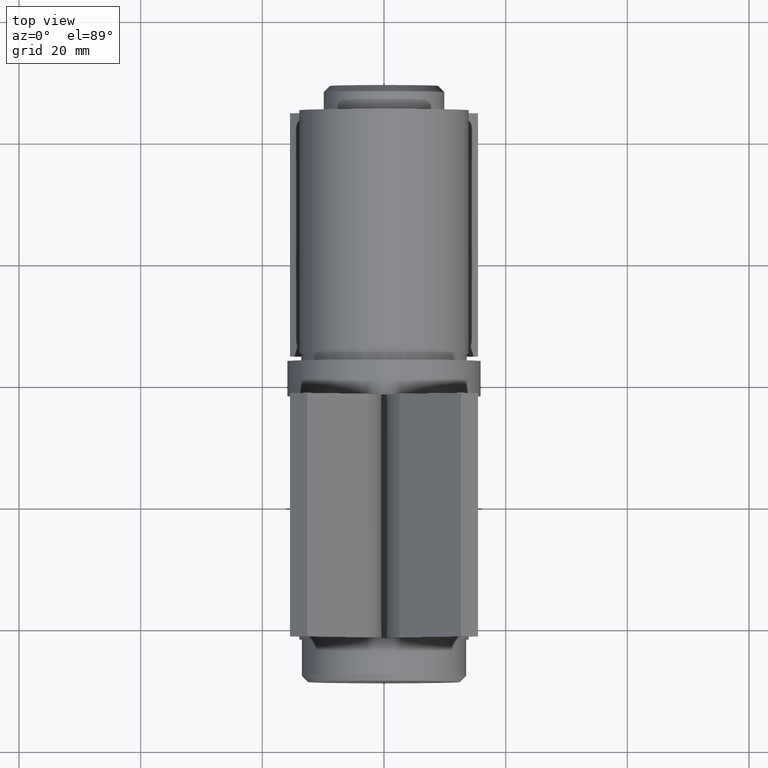
[diagram: clean part render]
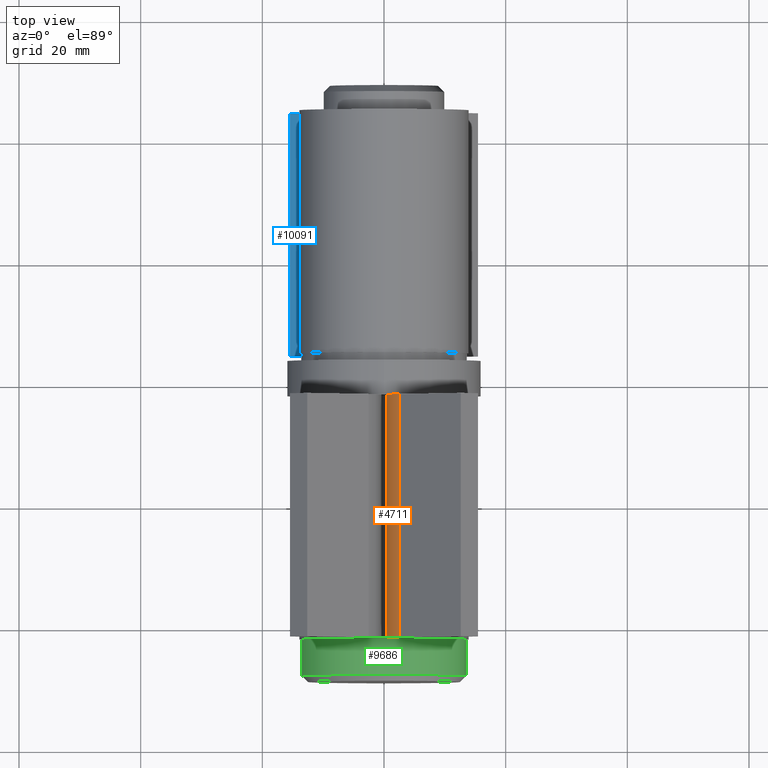
[diagram: same view with three faces highlighted in distinct colors, each labeled with its STEP entity id]
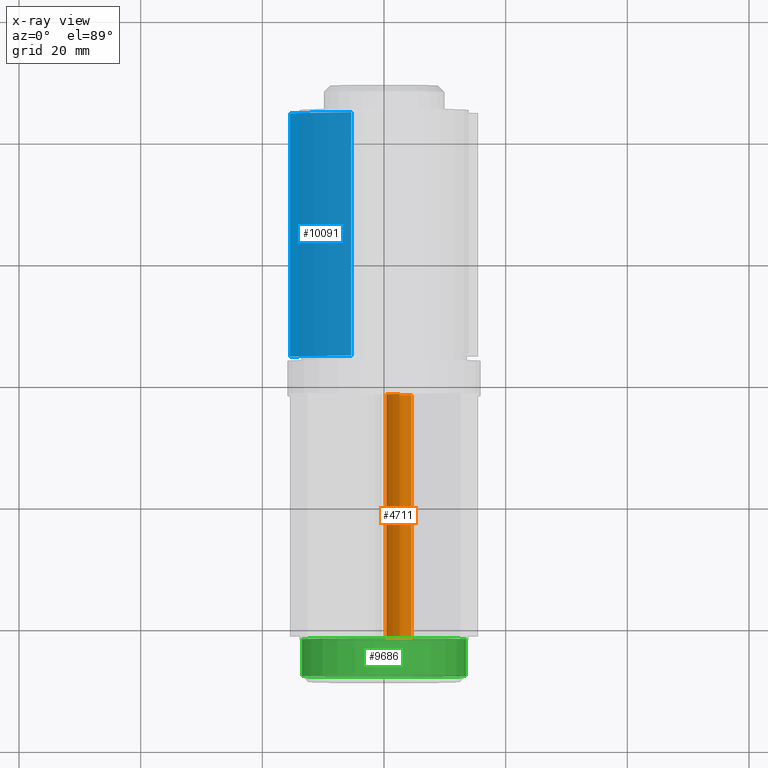
[diagram: x-ray of the same camera — body ghosted, the three highlighted faces saturated]
A machine part, top view with three faces highlighted in distinct colors.
The next image is the same camera in x-ray (body ghosted, the three faces saturated) — at least one of them is partly hidden behind the body in this view.
Their STEP definitions:

[orange] entity #4711 — the highlighted cylindrical surface (partial cylindrical patch) has radius 7.5 mm, axis along (0, -1, 0).
#37 = EDGE_CURVE ( 'NONE', #4811, #6224, #6127, .T. ) ;
#583 = EDGE_LOOP ( 'NONE', ( #5723, #11426, #11542, #7907 ) ) ;
#638 = CIRCLE ( 'NONE', #12363, 7.500000000000071054 ) ;
#719 = EDGE_CURVE ( 'NONE', #10398, #4811, #8656, .T. ) ;
#1332 = FACE_OUTER_BOUND ( 'NONE', #583, .T. ) ;
#3099 = CARTESIAN_POINT ( 'NONE',  ( -4.490430187397044470, 19.99999999999998934, -8.935101383426770738 ) ) ;
#3200 = DIRECTION ( 'NONE',  ( 0.000000000000000000, 1.000000000000000000, 0.000000000000000000 ) ) ;
#3757 = LINE ( 'NONE', #7688, #11171 ) ;
#3995 = DIRECTION ( 'NONE',  ( -0.000000000000000000, -1.000000000000000000, 0.000000000000000000 ) ) ;
#4277 = CARTESIAN_POINT ( 'NONE',  ( -2.554951969045671678, -20.00000000000000355, -20.93972827989598784 ) ) ;
#4711 = ADVANCED_FACE ( 'NONE', ( #1332 ), #11132, .T. ) ;
#4811 = VERTEX_POINT ( 'NONE', #11091 ) ;
#4996 = AXIS2_PLACEMENT_3D ( 'NONE', #6081, #7137, #8156 ) ;
#5723 = ORIENTED_EDGE ( 'NONE', *, *, #11420, .T. ) ;
#5767 = VERTEX_POINT ( 'NONE', #7937 ) ;
#6024 = DIRECTION ( 'NONE',  ( 0.000000000000000000, 1.000000000000000000, 0.000000000000000000 ) ) ;
#6081 = CARTESIAN_POINT ( 'NONE',  ( -7.858252827944821384, 19.99999999999998934, -15.63642742099687410 ) ) ;
#6120 = DIRECTION ( 'NONE',  ( -0.000000000000000000, -1.000000000000000000, 0.000000000000000000 ) ) ;
#6127 = LINE ( 'NONE', #10952, #10982 ) ;
#6224 = VERTEX_POINT ( 'NONE', #4277 ) ;
#7137 = DIRECTION ( 'NONE',  ( -0.000000000000000000, -1.000000000000000000, 0.000000000000000000 ) ) ;
#7688 = CARTESIAN_POINT ( 'NONE',  ( -4.490430187397044470, 19.99999999999998934, -8.935101383426770738 ) ) ;
#7907 = ORIENTED_EDGE ( 'NONE', *, *, #10746, .T. ) ;
#7937 = CARTESIAN_POINT ( 'NONE',  ( -4.490430187397044470, -20.00000000000000355, -8.935101383426770738 ) ) ;
#8156 = DIRECTION ( 'NONE',  ( 0.000000000000000000, 0.000000000000000000, -1.000000000000000000 ) ) ;
#8656 = CIRCLE ( 'NONE', #11698, 7.500000000000071054 ) ;
#9819 = DIRECTION ( 'NONE',  ( 0.000000000000000000, 0.000000000000000000, 1.000000000000000000 ) ) ;
#9914 = DIRECTION ( 'NONE',  ( 0.000000000000000000, 0.000000000000000000, 1.000000000000000000 ) ) ;
#10398 = VERTEX_POINT ( 'NONE', #3099 ) ;
#10746 = EDGE_CURVE ( 'NONE', #10398, #5767, #3757, .T. ) ;
#10952 = CARTESIAN_POINT ( 'NONE',  ( -2.554951969045671678, 19.99999999999998934, -20.93972827989598784 ) ) ;
#10982 = VECTOR ( 'NONE', #6120, 1000.000000000000000 ) ;
#11091 = CARTESIAN_POINT ( 'NONE',  ( -2.554951969045671678, 19.99999999999998934, -20.93972827989598784 ) ) ;
#11132 = CYLINDRICAL_SURFACE ( 'NONE', #4996, 7.500000000000072831 ) ;
#11171 = VECTOR ( 'NONE', #3995, 1000.000000000000000 ) ;
#11420 = EDGE_CURVE ( 'NONE', #5767, #6224, #638, .T. ) ;
#11426 = ORIENTED_EDGE ( 'NONE', *, *, #37, .F. ) ;
#11542 = ORIENTED_EDGE ( 'NONE', *, *, #719, .F. ) ;
#11698 = AXIS2_PLACEMENT_3D ( 'NONE', #11736, #6024, #9819 ) ;
#11736 = CARTESIAN_POINT ( 'NONE',  ( -7.858252827944821384, 19.99999999999998934, -15.63642742099687410 ) ) ;
#11826 = CARTESIAN_POINT ( 'NONE',  ( -7.858252827944821384, -20.00000000000000355, -15.63642742099687410 ) ) ;
#12363 = AXIS2_PLACEMENT_3D ( 'NONE', #11826, #3200, #9914 ) ;

[blue] entity #10091 — the highlighted planar face has unit normal (0.7071, 0, -0.7071).
#171 = VECTOR ( 'NONE', #8454, 1000.000000000000000 ) ;
#205 = VERTEX_POINT ( 'NONE', #9385 ) ;
#631 = DIRECTION ( 'NONE',  ( 0.7071067811865459074, 0.000000000000000000, -0.7071067811865491270 ) ) ;
#664 = EDGE_CURVE ( 'NONE', #4735, #205, #4163, .T. ) ;
#1423 = VECTOR ( 'NONE', #8917, 1000.000000000000114 ) ;
#1618 = FACE_OUTER_BOUND ( 'NONE', #1881, .T. ) ;
#1764 = VECTOR ( 'NONE', #3274, 1000.000000000000000 ) ;
#1881 = EDGE_LOOP ( 'NONE', ( #5477, #7703, #10307, #8770 ) ) ;
#2562 = PLANE ( 'NONE',  #5320 ) ;
#3274 = DIRECTION ( 'NONE',  ( -0.000000000000000000, -1.000000000000000000, 0.000000000000000000 ) ) ;
#3316 = CARTESIAN_POINT ( 'NONE',  ( -15.44365081389617345, -20.00000000000000355, -28.17157287525408904 ) ) ;
#3970 = LINE ( 'NONE', #11691, #1423 ) ;
#4061 = EDGE_CURVE ( 'NONE', #6496, #205, #3970, .T. ) ;
#4163 = LINE ( 'NONE', #5224, #1764 ) ;
#4474 = LINE ( 'NONE', #11671, #7627 ) ;
#4532 = LINE ( 'NONE', #7497, #171 ) ;
#4735 = VERTEX_POINT ( 'NONE', #5158 ) ;
#5158 = CARTESIAN_POINT ( 'NONE',  ( -5.383379093791876180, 19.99999999999998934, -18.11130115514979622 ) ) ;
#5224 = CARTESIAN_POINT ( 'NONE',  ( -5.383379093791876180, 19.99999999999998934, -18.11130115514979622 ) ) ;
#5320 = AXIS2_PLACEMENT_3D ( 'NONE', #7074, #631, #11204 ) ;
#5477 = ORIENTED_EDGE ( 'NONE', *, *, #4061, .T. ) ;
#6496 = VERTEX_POINT ( 'NONE', #3316 ) ;
#7074 = CARTESIAN_POINT ( 'NONE',  ( -5.383379093791874404, 19.99999999999998934, -18.11130115514979622 ) ) ;
#7497 = CARTESIAN_POINT ( 'NONE',  ( -15.44365081389617345, 19.99999999999998934, -28.17157287525408904 ) ) ;
#7627 = VECTOR ( 'NONE', #11713, 1000.000000000000114 ) ;
#7703 = ORIENTED_EDGE ( 'NONE', *, *, #664, .F. ) ;
#8454 = DIRECTION ( 'NONE',  ( -0.000000000000000000, -1.000000000000000000, 0.000000000000000000 ) ) ;
#8770 = ORIENTED_EDGE ( 'NONE', *, *, #12510, .T. ) ;
#8808 = CARTESIAN_POINT ( 'NONE',  ( -15.44365081389617345, 19.99999999999998934, -28.17157287525408904 ) ) ;
#8917 = DIRECTION ( 'NONE',  ( 0.7071067811865490160, 0.000000000000000000, 0.7071067811865460184 ) ) ;
#9385 = CARTESIAN_POINT ( 'NONE',  ( -5.383379093791876180, -20.00000000000000355, -18.11130115514979622 ) ) ;
#9467 = EDGE_CURVE ( 'NONE', #9978, #4735, #4474, .T. ) ;
#9978 = VERTEX_POINT ( 'NONE', #8808 ) ;
#10091 = ADVANCED_FACE ( 'NONE', ( #1618 ), #2562, .F. ) ;
#10307 = ORIENTED_EDGE ( 'NONE', *, *, #9467, .F. ) ;
#11204 = DIRECTION ( 'NONE',  ( -0.7071067811865491270, 0.000000000000000000, -0.7071067811865459074 ) ) ;
#11671 = CARTESIAN_POINT ( 'NONE',  ( -5.383379093791874404, 19.99999999999998934, -18.11130115514979622 ) ) ;
#11691 = CARTESIAN_POINT ( 'NONE',  ( -5.383379093791874404, -20.00000000000000355, -18.11130115514979622 ) ) ;
#11713 = DIRECTION ( 'NONE',  ( 0.7071067811865490160, 0.000000000000000000, 0.7071067811865460184 ) ) ;
#12510 = EDGE_CURVE ( 'NONE', #9978, #6496, #4532, .T. ) ;

[green] entity #9686 — the highlighted cylindrical surface (bore or boss wall) has radius 13.5 mm, axis along (0, 1, 0).
#1619 = DIRECTION ( 'NONE',  ( 1.293566315982484997E-16, 1.000000000000000000, -0.000000000000000000 ) ) ;
#1634 = EDGE_CURVE ( 'NONE', #2755, #2755, #2206, .T. ) ;
#2206 = CIRCLE ( 'NONE', #9009, 13.50000000000001243 ) ;
#2439 = EDGE_LOOP ( 'NONE', ( #6608 ) ) ;
#2731 = CIRCLE ( 'NONE', #9657, 13.50000000000001243 ) ;
#2755 = VERTEX_POINT ( 'NONE', #8579 ) ;
#3881 = DIRECTION ( 'NONE',  ( 1.293566315982484997E-16, 1.000000000000000000, -0.000000000000000000 ) ) ;
#4214 = CARTESIAN_POINT ( 'NONE',  ( 9.054964211877400158E-16, -42.00000000000001421, 0.000000000000000000 ) ) ;
#4505 = CARTESIAN_POINT ( 'NONE',  ( 1.293566315982483765E-16, -48.00000000000002132, 0.000000000000000000 ) ) ;
#4601 = EDGE_LOOP ( 'NONE', ( #7332 ) ) ;
#4759 = FACE_OUTER_BOUND ( 'NONE', #4601, .T. ) ;
#5376 = CARTESIAN_POINT ( 'NONE',  ( 1.267694989662835588E-14, 49.00000000000000711, 0.000000000000000000 ) ) ;
#6345 = DIRECTION ( 'NONE',  ( 1.293566315982484997E-16, 1.000000000000000000, -0.000000000000000000 ) ) ;
#6417 = DIRECTION ( 'NONE',  ( -1.000000000000000000, 0.000000000000000000, 0.000000000000000000 ) ) ;
#6608 = ORIENTED_EDGE ( 'NONE', *, *, #10572, .T. ) ;
#6797 = CARTESIAN_POINT ( 'NONE',  ( -13.50000000000001243, -48.00000000000002132, 0.000000000000000000 ) ) ;
#7332 = ORIENTED_EDGE ( 'NONE', *, *, #1634, .F. ) ;
#8579 = CARTESIAN_POINT ( 'NONE',  ( -13.50000000000001066, -42.00000000000001421, 0.000000000000000000 ) ) ;
#8967 = FACE_OUTER_BOUND ( 'NONE', #2439, .T. ) ;
#9009 = AXIS2_PLACEMENT_3D ( 'NONE', #4214, #3881, #11594 ) ;
#9198 = VERTEX_POINT ( 'NONE', #6797 ) ;
#9250 = DIRECTION ( 'NONE',  ( -1.000000000000000000, 0.000000000000000000, 0.000000000000000000 ) ) ;
#9657 = AXIS2_PLACEMENT_3D ( 'NONE', #4505, #1619, #9250 ) ;
#9686 = ADVANCED_FACE ( 'NONE', ( #8967, #4759 ), #11863, .T. ) ;
#10572 = EDGE_CURVE ( 'NONE', #9198, #9198, #2731, .T. ) ;
#11594 = DIRECTION ( 'NONE',  ( -1.000000000000000000, 0.000000000000000000, 0.000000000000000000 ) ) ;
#11629 = AXIS2_PLACEMENT_3D ( 'NONE', #5376, #6345, #6417 ) ;
#11863 = CYLINDRICAL_SURFACE ( 'NONE', #11629, 13.50000000000001243 ) ;